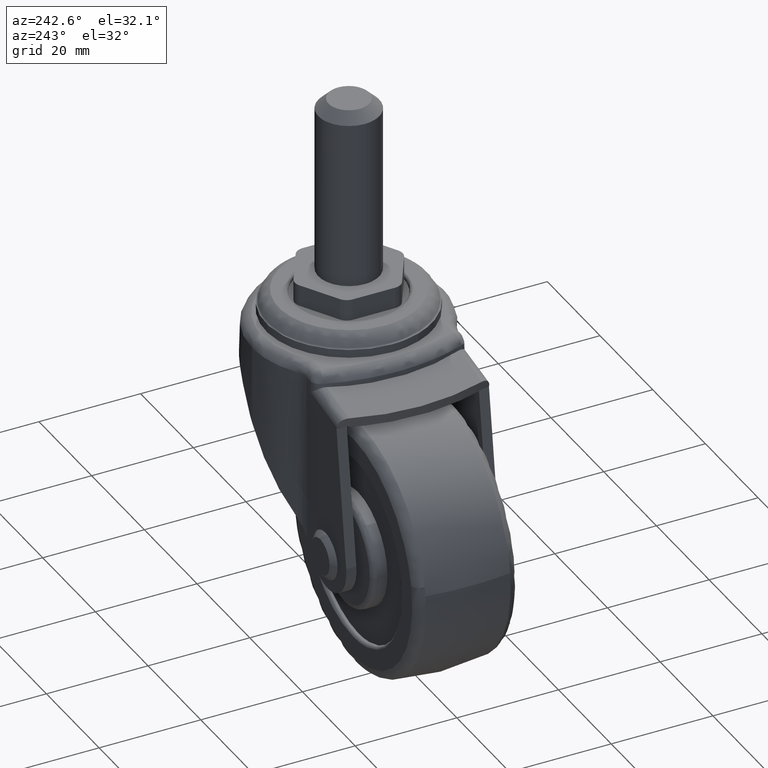
[diagram: clean part render]
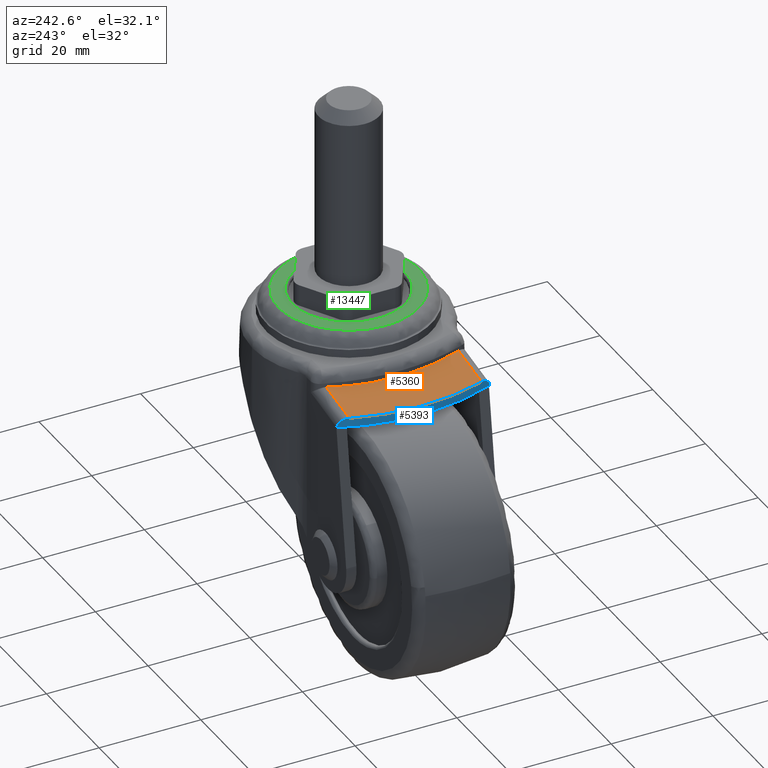
[diagram: same view with three faces highlighted in distinct colors, each labeled with its STEP entity id]
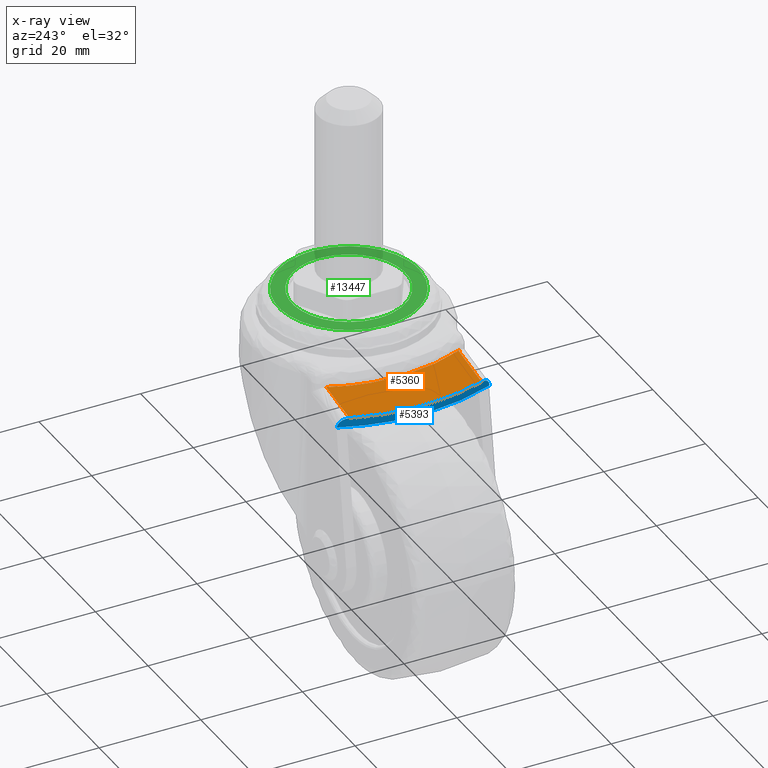
[diagram: x-ray of the same camera — body ghosted, the three highlighted faces saturated]
A machine part, auxiliary view with three faces highlighted in distinct colors.
The next image is the same camera in x-ray (body ghosted, the three faces saturated) — at least one of them is partly hidden behind the body in this view.
Their STEP definitions:

[orange] entity #5360 — the highlighted face is a freeform B-spline surface patch.
#3045=CARTESIAN_POINT('',(4.359235555929789,-12.999985000000001,31.368937719156751));
#3046=VERTEX_POINT('',#3045);
#3047=CARTESIAN_POINT('',(4.536904634408190,-13.247615656061059,31.400264463679150));
#3048=VERTEX_POINT('',#3047);
#3049=CARTESIAN_POINT('',(4.359235555929789,-12.999985000000001,31.368937719156751));
#3050=CARTESIAN_POINT('',(4.361612149011454,-13.005949313544070,31.369356753768269));
#3051=CARTESIAN_POINT('',(4.365267842937012,-13.011146535128169,31.370001328139882));
#3052=CARTESIAN_POINT('',(4.372563512598132,-13.021550404681300,31.371287705344908));
#3053=CARTESIAN_POINT('',(4.376338199728277,-13.026662130130241,31.371953261485160));
#3054=CARTESIAN_POINT('',(4.387680882958702,-13.041976605000150,31.373953213360501));
#3055=CARTESIAN_POINT('',(4.395311693535214,-13.052134611130199,31.375298684992721));
#3056=CARTESIAN_POINT('',(4.418140129010505,-13.082656513092781,31.379323815709618));
#3057=CARTESIAN_POINT('',(4.433313108813968,-13.103039802653210,31.381999129154821));
#3058=CARTESIAN_POINT('',(4.478450789789116,-13.164465321082460,31.389957843267421));
#3059=CARTESIAN_POINT('',(4.508060559841332,-13.205763867268811,31.395178659933869));
#3060=CARTESIAN_POINT('',(4.536904634408190,-13.247615656061059,31.400264463679150));
#3061=B_SPLINE_CURVE_WITH_KNOTS('',3,(#3049,#3050,#3051,#3052,#3053,#3054,#3055,#3056,#3057,#3058,#3059,#3060),.UNSPECIFIED.,.F.,.U.,(4,2,2,2,2,4),(0.0,0.062499999999995,0.124999999999991,0.249999999999988,0.499999999999997,0.999998222439564),.UNSPECIFIED.);
#3062=EDGE_CURVE('',#3046,#3048,#3061,.T.);
#3172=CARTESIAN_POINT('',(4.536904632619089,13.247615651007919,31.400264463363651));
#3173=VERTEX_POINT('',#3172);
#3181=CARTESIAN_POINT('',(4.359235555264420,12.999985000000040,31.368937719039408));
#3182=VERTEX_POINT('',#3181);
#3199=CARTESIAN_POINT('',(4.536904632619089,13.247615651007919,31.400264463363651));
#3200=CARTESIAN_POINT('',(4.508060556452680,13.205763863901559,31.395178659336331));
#3201=CARTESIAN_POINT('',(4.478450784963863,13.164465319629240,31.389957842416589));
#3202=CARTESIAN_POINT('',(4.433313102315326,13.103039804048381,31.381999128008928));
#3203=CARTESIAN_POINT('',(4.418140121886051,13.082656515345359,31.379323814453361));
#3204=CARTESIAN_POINT('',(4.395311685979347,13.052134614147800,31.375298683660400));
#3205=CARTESIAN_POINT('',(4.387680875290576,13.041976608239009,31.373953212008409));
#3206=CARTESIAN_POINT('',(4.376338192875035,13.026662133014611,31.371953260276740));
#3207=CARTESIAN_POINT('',(4.372563507140052,13.021550408743670,31.371287704382471));
#3208=CARTESIAN_POINT('',(4.365267837374110,13.011146534459719,31.370001327158970));
#3209=CARTESIAN_POINT('',(4.361612146879317,13.005949308368679,31.369356753392310));
#3210=CARTESIAN_POINT('',(4.359235555264420,12.999985000000040,31.368937719039408));
#3211=B_SPLINE_CURVE_WITH_KNOTS('',3,(#3199,#3200,#3201,#3202,#3203,#3204,#3205,#3206,#3207,#3208,#3209,#3210),.UNSPECIFIED.,.F.,.U.,(4,2,2,2,2,4),(0.000001777556871,0.499999999999997,0.749999999999997,0.874999999999994,0.937499999999997,1.0),.UNSPECIFIED.);
#3212=EDGE_CURVE('',#3173,#3182,#3211,.T.);
#4544=CARTESIAN_POINT('',(-4.319801290159271,12.999985000000040,29.838588818759050));
#4545=VERTEX_POINT('',#4544);
#4546=CARTESIAN_POINT('',(4.359235555264420,12.999985000000040,31.368937719039408));
#4547=CARTESIAN_POINT('',(-4.319801290159271,12.999985000000040,29.838588818759050));
#4548=QUASI_UNIFORM_CURVE('',1,(#4546,#4547),.UNSPECIFIED.,.F.,.U.);
#4549=EDGE_CURVE('',#3182,#4545,#4548,.T.);
#4617=CARTESIAN_POINT('',(-4.319801290159285,-12.999985000000001,29.838588818759050));
#4618=VERTEX_POINT('',#4617);
#4619=CARTESIAN_POINT('',(-4.319801290159285,-12.999985000000001,29.838588818759050));
#4620=CARTESIAN_POINT('',(4.359235555929789,-12.999985000000001,31.368937719156751));
#4621=QUASI_UNIFORM_CURVE('',1,(#4619,#4620),.UNSPECIFIED.,.F.,.U.);
#4622=EDGE_CURVE('',#4618,#3046,#4621,.T.);
#5316=CARTESIAN_POINT('',(4.536904634408166,-13.247615656061081,31.400264463679161));
#5317=CARTESIAN_POINT('',(-0.153528937793447,-2.853155E-009,30.573213565801396));
#5318=CARTESIAN_POINT('',(4.536904632619049,13.247615651007919,31.400264463363690));
#5326=(BOUNDED_CURVE()B_SPLINE_CURVE(2,(#5316,#5317,#5318),.UNSPECIFIED.,.F.,.U.)CURVE()GEOMETRIC_REPRESENTATION_ITEM()QUASI_UNIFORM_CURVE()RATIONAL_B_SPLINE_CURVE((1.0,0.941031089650532,1.0))REPRESENTATION_ITEM(''));
#5327=EDGE_CURVE('',#3048,#3173,#5326,.T.);
#5335=CARTESIAN_POINT('',(5.068218484624499,-14.571052657214530,31.493950675577679));
#5336=CARTESIAN_POINT('',(-6.631321850216557,-14.571052657214530,29.431003788101449));
#5337=CARTESIAN_POINT('',(5.068218484624499,14.571053125933050,31.493950675577679));
#5338=CARTESIAN_POINT('',(-6.631321850216557,14.571053125933050,29.431003788101449));
#5339=B_SPLINE_SURFACE_WITH_KNOTS('',1,1,((#5335,#5337),(#5336,#5338)),.UNSPECIFIED.,.F.,.F.,.U.,(2,2),(2,2),(0.0,11.880024996064639),(0.0,29.142105783147581),.UNSPECIFIED.);
#5340=ORIENTED_EDGE('',*,*,#4622,.T.);
#5341=ORIENTED_EDGE('',*,*,#3062,.T.);
#5342=ORIENTED_EDGE('',*,*,#5327,.T.);
#5343=ORIENTED_EDGE('',*,*,#3212,.T.);
#5344=ORIENTED_EDGE('',*,*,#4549,.T.);
#5345=CARTESIAN_POINT('',(-4.319801290159312,-12.999985000000001,29.838588818759028));
#5346=CARTESIAN_POINT('',(-7.950413914071161,1.908196E-014,29.198413153923163));
#5347=CARTESIAN_POINT('',(-4.319801290159312,12.999985000000020,29.838588818759028));
#5355=(BOUNDED_CURVE()B_SPLINE_CURVE(2,(#5345,#5346,#5347),.UNSPECIFIED.,.F.,.U.)CURVE()GEOMETRIC_REPRESENTATION_ITEM()QUASI_UNIFORM_CURVE()RATIONAL_B_SPLINE_CURVE((1.0,0.962062808113520,1.0))REPRESENTATION_ITEM(''));
#5356=EDGE_CURVE('',#4618,#4545,#5355,.T.);
#5357=ORIENTED_EDGE('',*,*,#5356,.F.);
#5358=EDGE_LOOP('',(#5340,#5341,#5342,#5343,#5344,#5357));
#5359=FACE_OUTER_BOUND('',#5358,.T.);
#5360=ADVANCED_FACE('',(#5359),#5339,.F.);

[blue] entity #5393 — the highlighted face is a freeform B-spline surface patch.
#4296=CARTESIAN_POINT('',(-3.366469656212110,14.999985000000040,27.973207399967499));
#4297=VERTEX_POINT('',#4296);
#4335=CARTESIAN_POINT('',(-3.389177574377040,14.931658832699060,27.971828464919451));
#4336=VERTEX_POINT('',#4335);
#4342=CARTESIAN_POINT('',(-3.366469656212110,14.999985000000040,27.973207399967499));
#4343=CARTESIAN_POINT('',(-3.374200069838119,14.977245611276929,27.973620289916610));
#4344=CARTESIAN_POINT('',(-3.381765445438240,14.954469339423330,27.973136384212140));
#4345=CARTESIAN_POINT('',(-3.389177574377040,14.931658832699060,27.971828464919451));
#4346=QUASI_UNIFORM_CURVE('',3,(#4342,#4343,#4344,#4345),.UNSPECIFIED.,.F.,.U.);
#4347=EDGE_CURVE('',#4297,#4336,#4346,.T.);
#4392=CARTESIAN_POINT('',(-3.366469656212120,-14.999985000000001,27.973207399967499));
#4393=VERTEX_POINT('',#4392);
#4407=CARTESIAN_POINT('',(-3.389177574377040,-14.931658832699060,27.971828464919451));
#4408=VERTEX_POINT('',#4407);
#4409=CARTESIAN_POINT('',(-3.389177574377040,-14.931658832699060,27.971828464919451));
#4410=CARTESIAN_POINT('',(-3.381764921241526,-14.954469164853030,27.973136358954800));
#4411=CARTESIAN_POINT('',(-3.374200575453615,-14.977245781114810,27.973620200790290));
#4412=CARTESIAN_POINT('',(-3.366469656212120,-14.999985000000001,27.973207399967499));
#4413=QUASI_UNIFORM_CURVE('',3,(#4409,#4410,#4411,#4412),.UNSPECIFIED.,.F.,.U.);
#4414=EDGE_CURVE('',#4408,#4393,#4413,.T.);
#4544=CARTESIAN_POINT('',(-4.319801290159271,12.999985000000040,29.838588818759050));
#4545=VERTEX_POINT('',#4544);
#4552=CARTESIAN_POINT('',(-3.366916777729765,14.999985000000040,27.975752992311101));
#4553=VERTEX_POINT('',#4552);
#4559=CARTESIAN_POINT('',(-4.319801290159271,12.999985000000040,29.838588818759050));
#4560=CARTESIAN_POINT('',(-4.283514696090906,13.129914668065981,29.844987064960961));
#4561=CARTESIAN_POINT('',(-4.245078248491038,13.257636212037260,29.839031020645081));
#4562=CARTESIAN_POINT('',(-4.184383088276324,13.446064725960911,29.812374142938229));
#4563=CARTESIAN_POINT('',(-4.163641371559687,13.508344901135549,29.800513136279299));
#4564=CARTESIAN_POINT('',(-4.121134669880420,13.631830491455490,29.770718323697999));
#4565=CARTESIAN_POINT('',(-4.099250987625358,13.693350528308780,29.752661059857360));
#4566=CARTESIAN_POINT('',(-4.033184989092308,13.873125802135741,29.690088201641441));
#4567=CARTESIAN_POINT('',(-3.988502540073497,13.986993338272230,29.637325047018908));
#4568=CARTESIAN_POINT('',(-3.920715819539575,14.148940777058909,29.541688766027541));
#4569=CARTESIAN_POINT('',(-3.897992547654177,14.201437484015580,29.507042277067001));
#4570=CARTESIAN_POINT('',(-3.863737012995071,14.277871360137780,29.450745423346671));
#4571=CARTESIAN_POINT('',(-3.852264558254048,14.303016431343050,29.431209486933859));
#4572=CARTESIAN_POINT('',(-3.829507253541406,14.351999650374641,29.391081524413600));
#4573=CARTESIAN_POINT('',(-3.818199163342542,14.375891658916441,29.370454331677589));
#4574=CARTESIAN_POINT('',(-3.762019948732782,14.492392930404129,29.264533115882720));
#4575=CARTESIAN_POINT('',(-3.718221496490068,14.576212696467319,29.170965264693571));
#4576=CARTESIAN_POINT('',(-3.665145227089597,14.669014062895410,29.042636940074200));
#4577=CARTESIAN_POINT('',(-3.654614283401144,14.686970165188880,29.016397646015271));
#4578=CARTESIAN_POINT('',(-3.633730207416746,14.721644623914329,28.962741523184260));
#4579=CARTESIAN_POINT('',(-3.623346098190933,14.738410606724941,28.935238446118380));
#4580=CARTESIAN_POINT('',(-3.592753031727958,14.786364039461450,28.851666935376361));
#4581=CARTESIAN_POINT('',(-3.573102215877844,14.815228408100340,28.794566271188430));
#4582=CARTESIAN_POINT('',(-3.516389057832529,14.892708533107021,28.619178780704861));
#4583=CARTESIAN_POINT('',(-3.481545444303567,14.932305257751359,28.496847815366280));
#4584=CARTESIAN_POINT('',(-3.434103072565854,14.972750012505079,28.304805509631208));
#4585=CARTESIAN_POINT('',(-3.419143697940987,14.982981958074280,28.239487330253290));
#4586=CARTESIAN_POINT('',(-3.391458564545710,14.996565059859330,28.108401464592170));
#4587=CARTESIAN_POINT('',(-3.378657959811997,14.999985000000040,28.042340312826930));
#4588=CARTESIAN_POINT('',(-3.366916777729765,14.999985000000040,27.975752992311101));
#4589=B_SPLINE_CURVE_WITH_KNOTS('',3,(#4559,#4560,#4561,#4562,#4563,#4564,#4565,#4566,#4567,#4568,#4569,#4570,#4571,#4572,#4573,#4574,#4575,#4576,#4577,#4578,#4579,#4580,#4581,#4582,#4583,#4584,#4585,#4586,#4587,#4588),.UNSPECIFIED.,.F.,.U.,(4,2,2,2,2,2,2,2,2,2,2,2,2,2,4),(0.0,0.125000000000007,0.187500000000010,0.250000000000012,0.375000000000018,0.437500000000021,0.468750000000022,0.500000000000023,0.625000000000020,0.656250000000019,0.687500000000018,0.750000000000015,0.875000000000009,0.937500000000004,1.0),.UNSPECIFIED.);
#4590=EDGE_CURVE('',#4545,#4553,#4589,.T.);
#4609=CARTESIAN_POINT('',(-3.366918435579210,-14.999985000000001,27.975753526880698));
#4610=VERTEX_POINT('',#4609);
#4617=CARTESIAN_POINT('',(-4.319801290159285,-12.999985000000001,29.838588818759050));
#4618=VERTEX_POINT('',#4617);
#4624=CARTESIAN_POINT('',(-3.366918435579210,-14.999985000000001,27.975753526880698));
#4625=CARTESIAN_POINT('',(-3.390379819745569,-14.999985014852131,28.108809181898099));
#4626=CARTESIAN_POINT('',(-3.417845487767065,-14.986435734137901,28.238658879831050));
#4627=CARTESIAN_POINT('',(-3.464712629926392,-14.946740974047620,28.428863062716960));
#4628=CARTESIAN_POINT('',(-3.481286158183792,-14.930255562590000,28.491496991249750));
#4629=CARTESIAN_POINT('',(-3.507586604879849,-14.900541300327911,28.584275866473892));
#4630=CARTESIAN_POINT('',(-3.516613593681346,-14.889776635030280,28.615066971595748));
#4631=CARTESIAN_POINT('',(-3.534944899726792,-14.866818663714680,28.675573773623160));
#4632=CARTESIAN_POINT('',(-3.544269322783811,-14.854604938472489,28.705364665653541));
#4633=CARTESIAN_POINT('',(-3.591657658842193,-14.789945180313021,28.852062066353280));
#4634=CARTESIAN_POINT('',(-3.632000693586907,-14.726831730168330,28.962262903318400));
#4635=CARTESIAN_POINT('',(-3.695884977100834,-14.615335740353739,29.117068011707239));
#4636=CARTESIAN_POINT('',(-3.717830547736060,-14.575165831249221,29.167063762654870));
#4637=CARTESIAN_POINT('',(-3.761910179853271,-14.490826202428080,29.261502858391889));
#4638=CARTESIAN_POINT('',(-3.806366181107151,-14.402185705036770,29.350890112295250));
#4639=CARTESIAN_POINT('',(-3.851471861877303,-14.305189413878029,29.430506461789999));
#4640=CARTESIAN_POINT('',(-3.896862082390065,-14.204014222335140,29.505257921541450));
#4641=CARTESIAN_POINT('',(-3.919802508809814,-14.151088968264920,29.540343336093748));
#4642=CARTESIAN_POINT('',(-3.988242701895039,-13.987692140194200,29.637063164379089));
#4643=CARTESIAN_POINT('',(-4.032959049527100,-13.873680538092000,29.689785033851479));
#4644=CARTESIAN_POINT('',(-4.098541717727033,-13.695316892094120,29.752030713850360));
#4645=CARTESIAN_POINT('',(-4.120152989385944,-13.634629128381819,29.769952051434519));
#4646=CARTESIAN_POINT('',(-4.162841965793271,-13.510727881827490,29.800025369480700));
#4647=CARTESIAN_POINT('',(-4.183867686377810,-13.447643661722161,29.812112609402160));
#4648=CARTESIAN_POINT('',(-4.244998413980026,-13.257941237396221,29.839062787928409));
#4649=CARTESIAN_POINT('',(-4.283542617531853,-13.129814709539630,29.844982199919361));
#4650=CARTESIAN_POINT('',(-4.319801290159285,-12.999985000000001,29.838588818759050));
#4651=B_SPLINE_CURVE_WITH_KNOTS('',3,(#4624,#4625,#4626,#4627,#4628,#4629,#4630,#4631,#4632,#4633,#4634,#4635,#4636,#4637,#4638,#4639,#4640,#4641,#4642,#4643,#4644,#4645,#4646,#4647,#4648,#4649,#4650),.UNSPECIFIED.,.F.,.U.,(4,2,2,2,2,2,2,1,2,2,2,2,2,4),(0.0,0.125000000000007,0.187500000000010,0.218750000000011,0.250000000000011,0.375000000000010,0.437500000000008,0.500000000000007,0.562500000000005,0.625000000000004,0.750000000000002,0.812500000000001,0.875000000000000,1.0),.UNSPECIFIED.);
#4652=EDGE_CURVE('',#4610,#4618,#4651,.T.);
#5283=CARTESIAN_POINT('',(-3.389177574377004,-14.931658832699039,27.971828464919451));
#5284=CARTESIAN_POINT('',(-8.241598961342522,-5.204170E-015,27.116214713398538));
#5285=CARTESIAN_POINT('',(-3.389177574377019,14.931658832699020,27.971828464919451));
#5293=(BOUNDED_CURVE()B_SPLINE_CURVE(2,(#5283,#5284,#5285),.UNSPECIFIED.,.F.,.U.)CURVE()GEOMETRIC_REPRESENTATION_ITEM()QUASI_UNIFORM_CURVE()RATIONAL_B_SPLINE_CURVE((1.0,0.949631856010023,1.0))REPRESENTATION_ITEM(''));
#5294=EDGE_CURVE('',#4408,#4336,#5293,.T.);
#5345=CARTESIAN_POINT('',(-4.319801290159312,-12.999985000000001,29.838588818759028));
#5346=CARTESIAN_POINT('',(-7.950413914071161,1.908196E-014,29.198413153923163));
#5347=CARTESIAN_POINT('',(-4.319801290159312,12.999985000000020,29.838588818759028));
#5355=(BOUNDED_CURVE()B_SPLINE_CURVE(2,(#5345,#5346,#5347),.UNSPECIFIED.,.F.,.U.)CURVE()GEOMETRIC_REPRESENTATION_ITEM()QUASI_UNIFORM_CURVE()RATIONAL_B_SPLINE_CURVE((1.0,0.962062808113520,1.0))REPRESENTATION_ITEM(''));
#5356=EDGE_CURVE('',#4618,#4545,#5355,.T.);
#5361=CARTESIAN_POINT('',(-3.239742160511607,16.405391123281454,30.079869585430753));
#5362=CARTESIAN_POINT('',(-2.874391659463196,16.405391123281454,28.007866205547554));
#5363=CARTESIAN_POINT('',(-9.166775089584212,-0.006338712201512,29.034772617254390));
#5364=CARTESIAN_POINT('',(-8.801424588535802,-0.006338712201512,26.962769237371194));
#5365=CARTESIAN_POINT('',(-3.235705292861050,-16.416564739745713,30.080581394896473));
#5366=CARTESIAN_POINT('',(-2.870354791812638,-16.416564739745713,28.008578015013274));
#5374=(BOUNDED_SURFACE()B_SPLINE_SURFACE(1,2,((#5361,#5363,#5365),(#5362,#5364,#5366)),.UNSPECIFIED.,.F.,.F.,.U.)B_SPLINE_SURFACE_WITH_KNOTS((2,2),(3,3),(0.0,2.103967441493267),(0.0,33.857547425255447),.UNSPECIFIED.)GEOMETRIC_REPRESENTATION_ITEM()RATIONAL_B_SPLINE_SURFACE(((0.999959281816754,0.934882478798692,0.991674154105406),(0.999959281816754,0.934882478798692,0.991674154105406)))REPRESENTATION_ITEM('')SURFACE());
#5375=ORIENTED_EDGE('',*,*,#5294,.F.);
#5376=ORIENTED_EDGE('',*,*,#4414,.T.);
#5377=CARTESIAN_POINT('',(-3.366918435579210,-14.999985000000001,27.975753526880698));
#5378=CARTESIAN_POINT('',(-3.366469656212120,-14.999985000000001,27.973207399967499));
#5379=QUASI_UNIFORM_CURVE('',1,(#5377,#5378),.UNSPECIFIED.,.F.,.U.);
#5380=EDGE_CURVE('',#4610,#4393,#5379,.T.);
#5381=ORIENTED_EDGE('',*,*,#5380,.F.);
#5382=ORIENTED_EDGE('',*,*,#4652,.T.);
#5383=ORIENTED_EDGE('',*,*,#5356,.T.);
#5384=ORIENTED_EDGE('',*,*,#4590,.T.);
#5385=CARTESIAN_POINT('',(-3.366916777729765,14.999985000000040,27.975752992311101));
#5386=CARTESIAN_POINT('',(-3.366469656212110,14.999985000000040,27.973207399967499));
#5387=QUASI_UNIFORM_CURVE('',1,(#5385,#5386),.UNSPECIFIED.,.F.,.U.);
#5388=EDGE_CURVE('',#4553,#4297,#5387,.T.);
#5389=ORIENTED_EDGE('',*,*,#5388,.T.);
#5390=ORIENTED_EDGE('',*,*,#4347,.T.);
#5391=EDGE_LOOP('',(#5375,#5376,#5381,#5382,#5383,#5384,#5389,#5390));
#5392=FACE_OUTER_BOUND('',#5391,.T.);
#5393=ADVANCED_FACE('',(#5392),#5374,.T.);

[green] entity #13447 — the highlighted face is a freeform B-spline surface patch.
#12846=CARTESIAN_POINT('',(32.110221772522998,1.421085E-014,38.799995000000003));
#12847=VERTEX_POINT('',#12846);
#12848=CARTESIAN_POINT('',(17.074736799166750,-10.393716204484560,38.799995000000003));
#12849=VERTEX_POINT('',#12848);
#12850=CARTESIAN_POINT('',(32.110221772522998,1.421085E-014,38.799995000000003));
#12851=CARTESIAN_POINT('',(32.110221772522998,-11.110221772522989,38.799994999999988));
#12852=CARTESIAN_POINT('',(21.0,-11.110221772522991,38.799995000000003));
#12853=CARTESIAN_POINT('',(18.971974029394122,-11.110221772522989,38.799994999999988));
#12854=CARTESIAN_POINT('',(17.074736799166743,-10.393716204484557,38.799994999999996));
#12862=(BOUNDED_CURVE()B_SPLINE_CURVE(2,(#12850,#12851,#12852,#12853,#12854),.UNSPECIFIED.,.F.,.U.)B_SPLINE_CURVE_WITH_KNOTS((3,2,3),(0.0,0.250000000000000,0.310000000004632),.UNSPECIFIED.)CURVE()GEOMETRIC_REPRESENTATION_ITEM()RATIONAL_B_SPLINE_CURVE((1.0,0.707106781186547,1.0,0.929705627479344,0.893152553771209))REPRESENTATION_ITEM(''));
#12863=EDGE_CURVE('',#12847,#12849,#12862,.T.);
#12865=CARTESIAN_POINT('',(9.889778232161941,1.464873E-014,38.799995000000003));
#12866=VERTEX_POINT('',#12865);
#12867=CARTESIAN_POINT('',(9.889778232161941,1.464873E-014,38.799995000000003));
#12868=CARTESIAN_POINT('',(9.889778227477001,11.110221772523014,38.799994999999988));
#12869=CARTESIAN_POINT('',(21.0,11.110221772523010,38.799995000000003));
#12870=CARTESIAN_POINT('',(32.110221772522998,11.110221772523014,38.799994999999988));
#12871=CARTESIAN_POINT('',(32.110221772522998,1.421085E-014,38.799995000000003));
#12879=(BOUNDED_CURVE()B_SPLINE_CURVE(2,(#12867,#12868,#12869,#12870,#12871),.UNSPECIFIED.,.F.,.U.)B_SPLINE_CURVE_WITH_KNOTS((3,2,3),(0.500000000000000,0.750000000000000,1.0),.UNSPECIFIED.)CURVE()GEOMETRIC_REPRESENTATION_ITEM()RATIONAL_B_SPLINE_CURVE((1.0,0.707106781186547,1.0,0.707106781186547,1.0))REPRESENTATION_ITEM(''));
#12880=EDGE_CURVE('',#12866,#12847,#12879,.T.);
#12932=CARTESIAN_POINT('',(17.074736799166750,-10.393716204484557,38.799995000000003));
#12933=CARTESIAN_POINT('',(9.889778227477001,-7.680263876402266,38.799995000000003));
#12934=CARTESIAN_POINT('',(9.889778232161941,1.464873E-014,38.799995000000003));
#12942=(BOUNDED_CURVE()B_SPLINE_CURVE(2,(#12932,#12933,#12934),.UNSPECIFIED.,.F.,.U.)B_SPLINE_CURVE_WITH_KNOTS((3,3),(0.310000000004632,0.500000000000000),.UNSPECIFIED.)CURVE()GEOMETRIC_REPRESENTATION_ITEM()RATIONAL_B_SPLINE_CURVE((0.893152553771208,0.777401153707203,1.0))REPRESENTATION_ITEM(''));
#12943=EDGE_CURVE('',#12849,#12866,#12942,.T.);
#13311=CARTESIAN_POINT('',(20.653204732017610,-13.795639832037899,38.799995048496037));
#13312=VERTEX_POINT('',#13311);
#13326=CARTESIAN_POINT('',(7.200002000000101,0.0,38.799995000000003));
#13327=VERTEX_POINT('',#13326);
#13328=CARTESIAN_POINT('',(20.653204732017606,-13.795639832037899,38.799995048496044));
#13329=CARTESIAN_POINT('',(7.200002000000100,-13.457452739689971,38.799995000000003));
#13330=CARTESIAN_POINT('',(7.200002000000101,0.0,38.799995000000003));
#13338=(BOUNDED_CURVE()B_SPLINE_CURVE(2,(#13328,#13329,#13330),.UNSPECIFIED.,.F.,.U.)B_SPLINE_CURVE_WITH_KNOTS((3,3),(0.754420108246403,1.0),.UNSPECIFIED.)CURVE()GEOMETRIC_REPRESENTATION_ITEM()RATIONAL_B_SPLINE_CURVE((0.989826157644936,0.712285260113719,1.0))REPRESENTATION_ITEM(''));
#13339=EDGE_CURVE('',#13312,#13327,#13338,.T.);
#13341=CARTESIAN_POINT('',(34.799997999999903,0.0,38.799995000000003));
#13342=VERTEX_POINT('',#13341);
#13343=CARTESIAN_POINT('',(7.200002000000101,0.0,38.799995000000003));
#13344=CARTESIAN_POINT('',(7.200002000000101,13.799997999999901,38.799995000000003));
#13345=CARTESIAN_POINT('',(21.0,13.799997999999899,38.799995000000003));
#13346=CARTESIAN_POINT('',(34.799997999999896,13.799997999999901,38.799995000000003));
#13347=CARTESIAN_POINT('',(34.799997999999903,0.0,38.799995000000003));
#13355=(BOUNDED_CURVE()B_SPLINE_CURVE(2,(#13343,#13344,#13345,#13346,#13347),.UNSPECIFIED.,.F.,.U.)B_SPLINE_CURVE_WITH_KNOTS((3,2,3),(0.0,0.250000000000000,0.500000000000000),.UNSPECIFIED.)CURVE()GEOMETRIC_REPRESENTATION_ITEM()RATIONAL_B_SPLINE_CURVE((1.0,0.707106781186548,1.0,0.707106781186548,1.0))REPRESENTATION_ITEM(''));
#13356=EDGE_CURVE('',#13327,#13342,#13355,.T.);
#13358=CARTESIAN_POINT('',(34.795639831986023,-0.346795267959699,38.799995048513999));
#13359=VERTEX_POINT('',#13358);
#13360=CARTESIAN_POINT('',(34.799997999999903,0.0,38.799995000000003));
#13361=CARTESIAN_POINT('',(34.799997999999910,-0.173425018786563,38.799995000000003));
#13362=CARTESIAN_POINT('',(34.795639831986023,-0.346795267959699,38.799995048513999));
#13370=(BOUNDED_CURVE()B_SPLINE_CURVE(2,(#13360,#13361,#13362),.UNSPECIFIED.,.F.,.U.)B_SPLINE_CURVE_WITH_KNOTS((3,3),(0.500000000000000,0.504420108245862),.UNSPECIFIED.)CURVE()GEOMETRIC_REPRESENTATION_ITEM()RATIONAL_B_SPLINE_CURVE((1.0,0.994821521073463,0.989826157646159))REPRESENTATION_ITEM(''));
#13371=EDGE_CURVE('',#13342,#13359,#13370,.T.);
#13412=CARTESIAN_POINT('',(34.795639831986023,-0.346795267959699,38.799995048513999));
#13413=CARTESIAN_POINT('',(34.457452739731693,-13.799997999999903,38.799995000000003));
#13414=CARTESIAN_POINT('',(21.0,-13.799997999999899,38.799995000000003));
#13415=CARTESIAN_POINT('',(20.826574981192053,-13.799997999999903,38.799994999999996));
#13416=CARTESIAN_POINT('',(20.653204732017606,-13.795639832037908,38.799995048496044));
#13424=(BOUNDED_CURVE()B_SPLINE_CURVE(2,(#13412,#13413,#13414,#13415,#13416),.UNSPECIFIED.,.F.,.U.)B_SPLINE_CURVE_WITH_KNOTS((3,2,3),(0.504420108245861,0.750000000000000,0.754420108246404),.UNSPECIFIED.)CURVE()GEOMETRIC_REPRESENTATION_ITEM()RATIONAL_B_SPLINE_CURVE((0.989826157646161,0.712285260113084,1.0,0.994821521072828,0.989826157644934))REPRESENTATION_ITEM(''));
#13425=EDGE_CURVE('',#13359,#13312,#13424,.T.);
#13431=CARTESIAN_POINT('',(5.821382253294259,-15.174042147310590,38.799995000000003));
#13432=CARTESIAN_POINT('',(36.178618486995319,-15.174042147310590,38.799995000000003));
#13433=CARTESIAN_POINT('',(5.821382253294259,15.178400808720980,38.799995000000003));
#13434=CARTESIAN_POINT('',(36.178618486995319,15.178400808720980,38.799995000000003));
#13435=B_SPLINE_SURFACE_WITH_KNOTS('',1,1,((#13431,#13433),(#13432,#13434)),.UNSPECIFIED.,.F.,.F.,.U.,(2,2),(2,2),(0.0,30.357236233701059),(0.0,30.352442956031570),.UNSPECIFIED.);
#13436=ORIENTED_EDGE('',*,*,#13339,.F.);
#13437=ORIENTED_EDGE('',*,*,#13425,.F.);
#13438=ORIENTED_EDGE('',*,*,#13371,.F.);
#13439=ORIENTED_EDGE('',*,*,#13356,.F.);
#13440=EDGE_LOOP('',(#13436,#13437,#13438,#13439));
#13441=FACE_OUTER_BOUND('',#13440,.T.);
#13442=ORIENTED_EDGE('',*,*,#12880,.T.);
#13443=ORIENTED_EDGE('',*,*,#12863,.T.);
#13444=ORIENTED_EDGE('',*,*,#12943,.T.);
#13445=EDGE_LOOP('',(#13442,#13443,#13444));
#13446=FACE_BOUND('',#13445,.T.);
#13447=ADVANCED_FACE('',(#13441,#13446),#13435,.T.);